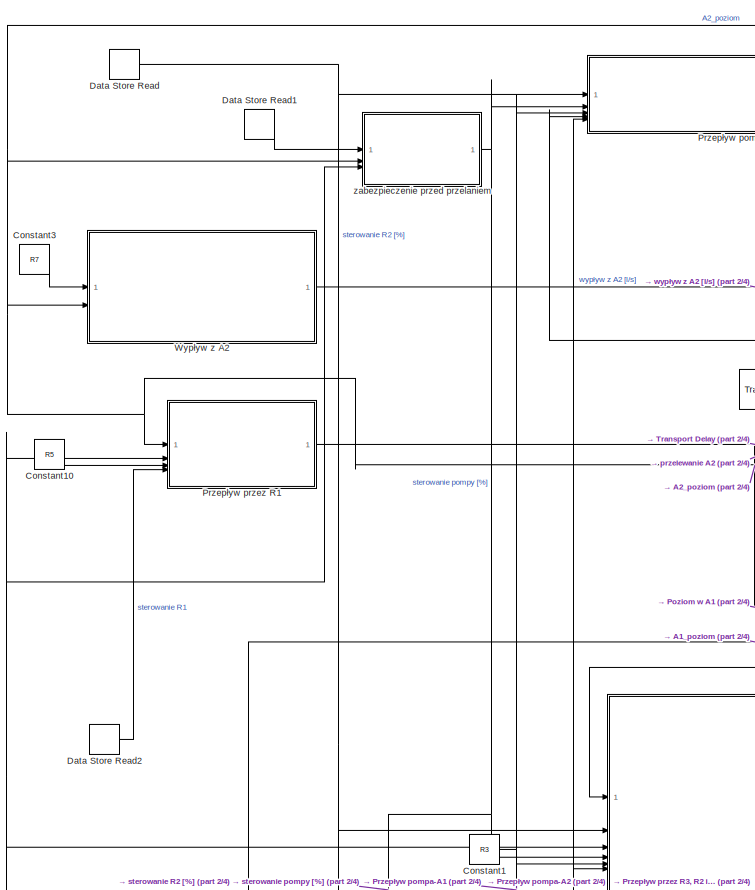
[diagram: root canvas - part 1/4, top left region]
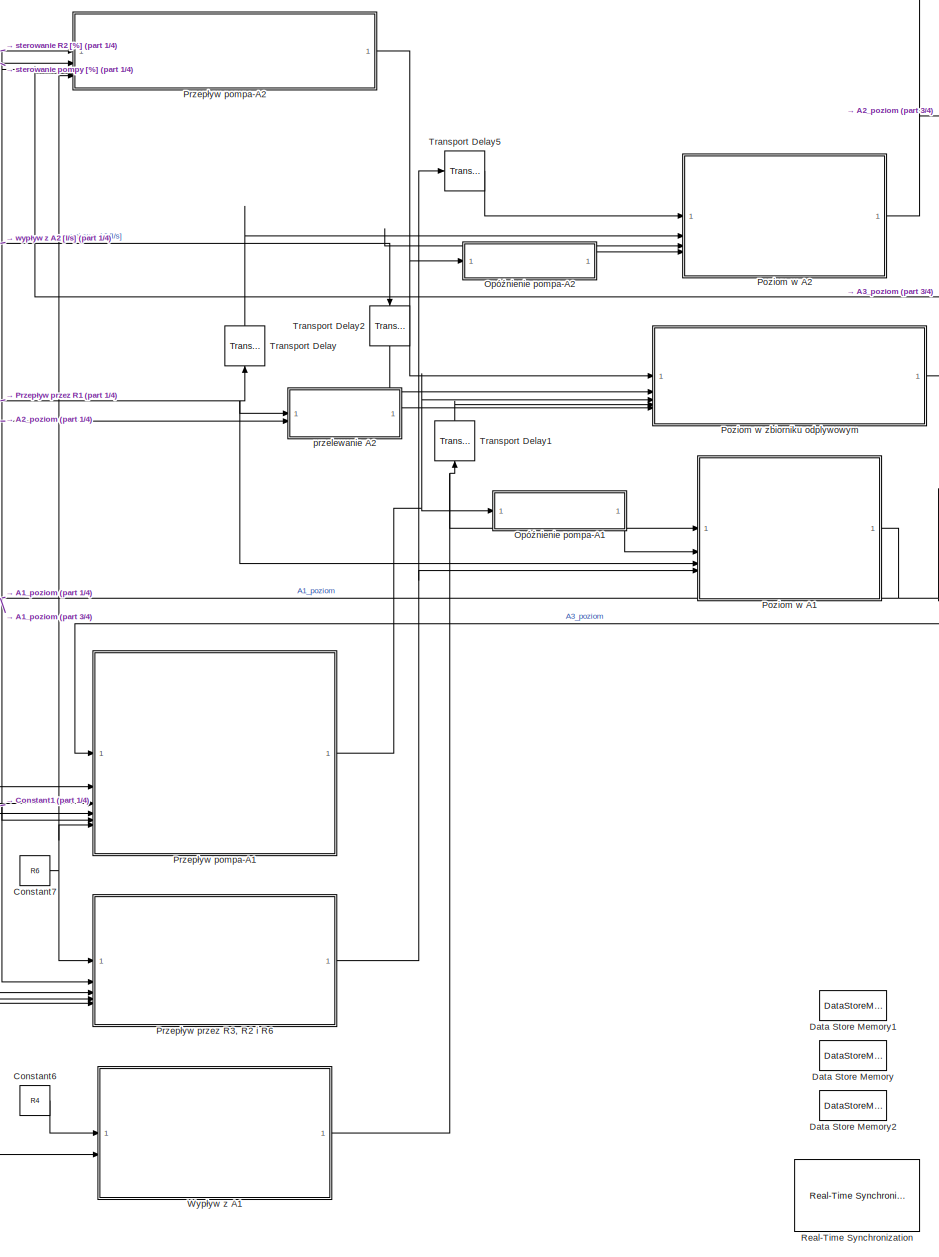
[diagram: root canvas - part 2/4, central region]
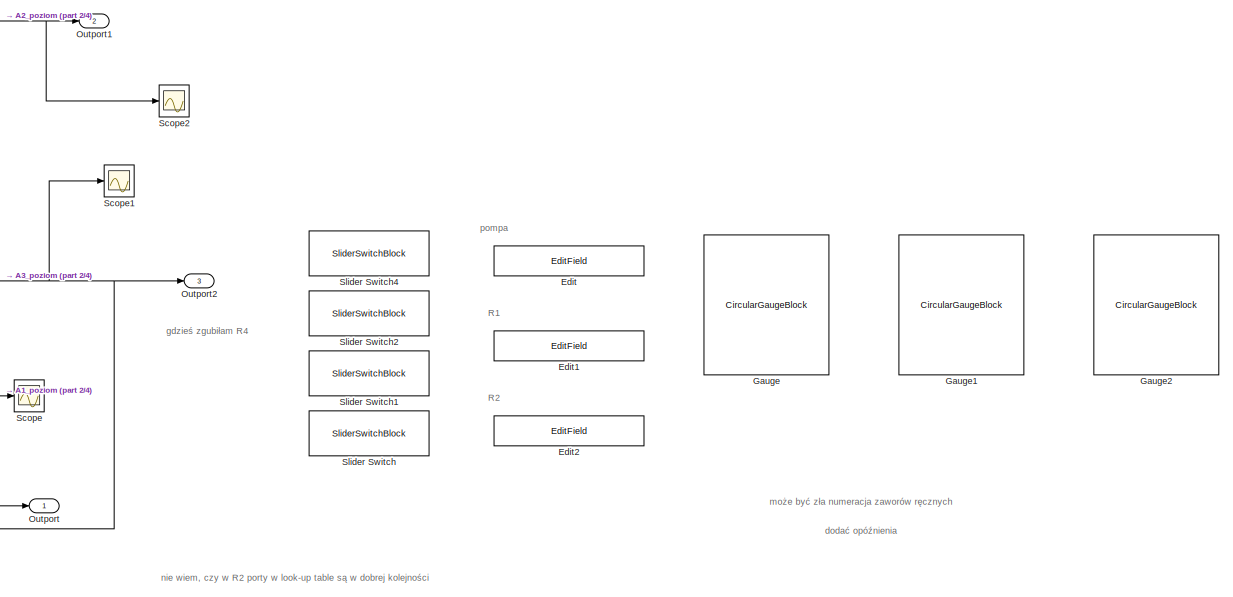
[diagram: root canvas - part 3/4, top right region]
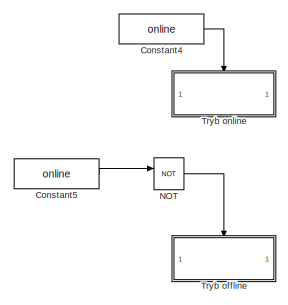
[diagram: root canvas - part 4/4, bottom left region]
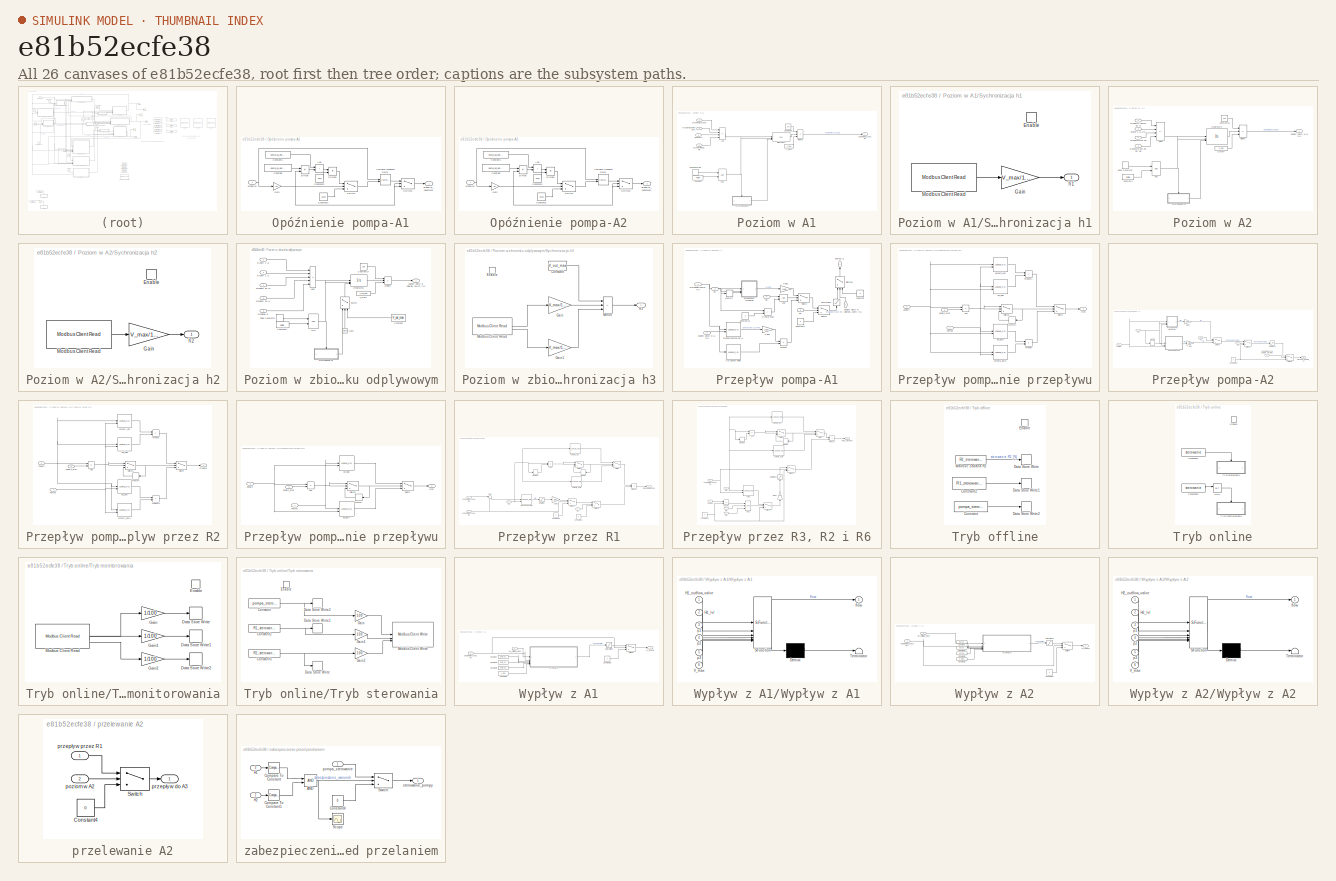
[diagram: thumbnail index - all 26 canvases of the model, root first then tree order]
MODEL slx_e81b52ecfe38
KIND model
CONFIG AbsTol = auto
CONFIG EnableMultiTasking = off
CONFIG FixedStep = auto
CONFIG InitFcn = PLC_IP = "10.10.6.1";\nport_num = 502;\n    \n    \nload("macierze_do_modelu.mat")
CONFIG MaxStep = auto
CONFIG MinStep = auto
CONFIG RelTol = 1e-3
CONFIG SampleTimeConstraint = Unconstrained
CONFIG SolverName = ode5
CONFIG StartTime = 0.0
CONFIG StopTime = inf
BLOCK [Constant] Constant1
  OutDataTypeStr = boolean
  Value = R3
BLOCK [Constant] Constant10
  OutDataTypeStr = boolean
  Value = R5
BLOCK [Constant] Constant3
  OutDataTypeStr = boolean
  Value = R7
BLOCK [Constant] Constant4
  OutDataTypeStr = boolean
  Value = online
BLOCK [Constant] Constant5
  OutDataTypeStr = boolean
  Value = online
BLOCK [Constant] Constant6
  OutDataTypeStr = boolean
  Value = R4
BLOCK [Constant] Constant7
  OutDataTypeStr = boolean
  Value = R6
BLOCK [DataStoreMemory] Data Store Memory
  DataStoreName = R2
  ShowAdditionalParam = off
  WriteAfterWriteMsg = warning
BLOCK [DataStoreMemory] Data Store Memory1
  DataStoreName = R1
  ShowAdditionalParam = off
  WriteAfterWriteMsg = warning
BLOCK [DataStoreMemory] Data Store Memory2
  DataStoreName = pompa
  ShowAdditionalParam = off
  WriteAfterWriteMsg = warning
BLOCK [DataStoreRead] Data Store Read
  DataStoreName = R2
  IndexOptions = Index vector (dialog)
  Indices = 1
  OutputSizes = 1
BLOCK [DataStoreRead] Data Store Read1
  DataStoreName = pompa
  IndexOptions = Index vector (dialog)
  Indices = 1
  OutputSizes = 1
BLOCK [DataStoreRead] Data Store Read2
  DataStoreName = R1
  IndexOptions = Index vector (dialog)
  Indices = 1
  OutputSizes = 1
BLOCK [EditField] Edit
  Alignment = Center
  Commented = on
  LabelPosition = Hide
  ShowInitialText = on
BLOCK [EditField] Edit1
  Alignment = Center
  Commented = on
  LabelPosition = Hide
  ShowInitialText = on
BLOCK [EditField] Edit2
  Alignment = Center
  Commented = on
  LabelPosition = Hide
  ShowInitialText = on
BLOCK [CircularGaugeBlock] Gauge
  Commented = on
BLOCK [CircularGaugeBlock] Gauge1
BLOCK [CircularGaugeBlock] Gauge2
BLOCK [Logic] NOT
  AllPortsSameDT = off
  IconShape = distinctive
  Operator = NOT
  OutDataTypeStr = boolean
BLOCK [SubSystem] Opóźnienie pompa-A1
BLOCK [Sum] Opóźnienie pompa-A1/Add
  IconShape = rectangular
BLOCK [Constant] Opóźnienie pompa-A1/Constant
  Value = pump_a1_delay_a
BLOCK [Constant] Opóźnienie pompa-A1/Constant1
  Value = pump_a1_delay_b
BLOCK [Constant] Opóźnienie pompa-A1/Constant2
  Value = 5000
BLOCK [Constant] Opóźnienie pompa-A1/Constant3
  Value = 1000
BLOCK [Product] Opóźnienie pompa-A1/Divide
  Inputs = */
BLOCK [Product] Opóźnienie pompa-A1/Divide1
  Inputs = */
BLOCK [Gain] Opóźnienie pompa-A1/Gain
  Gain = 60
BLOCK [Switch] Opóźnienie pompa-A1/Switch
  Criteria = u2 > Threshold
  InputSameDT = off
  SaturateOnIntegerOverflow = off
  Threshold = 0.1
BLOCK [Switch] Opóźnienie pompa-A1/Switch1
  Criteria = u2 > Threshold
  InputSameDT = off
  SaturateOnIntegerOverflow = off
  Threshold = 0.1
BLOCK [VariableTransportDelay] Opóźnienie pompa-A1/Variable Transport Delay
  MaximumDelay = 5000
  VariableDelayType = Variable transport delay
BLOCK [Inport] Opóźnienie pompa-A1/przeplyw
BLOCK [Outport] Opóźnienie pompa-A1/przeplyw_opozniony
BLOCK [SubSystem] Opóźnienie pompa-A2
BLOCK [Sum] Opóźnienie pompa-A2/Add
  IconShape = rectangular
BLOCK [Constant] Opóźnienie pompa-A2/Constant
  Value = pump_a2_delay_a
BLOCK [Constant] Opóźnienie pompa-A2/Constant1
  Value = pump_a2_delay_b
BLOCK [Constant] Opóźnienie pompa-A2/Constant2
  Value = 5000
BLOCK [Constant] Opóźnienie pompa-A2/Constant3
  Value = 1000
BLOCK [Product] Opóźnienie pompa-A2/Divide
  Inputs = */
BLOCK [Product] Opóźnienie pompa-A2/Divide1
  Inputs = */
BLOCK [Gain] Opóźnienie pompa-A2/Gain
  Gain = 60
BLOCK [Switch] Opóźnienie pompa-A2/Switch
  Criteria = u2 > Threshold
  InputSameDT = off
  SaturateOnIntegerOverflow = off
  Threshold = 0.1
BLOCK [Switch] Opóźnienie pompa-A2/Switch1
  Criteria = u2 > Threshold
  InputSameDT = off
  SaturateOnIntegerOverflow = off
  Threshold = 0.1
BLOCK [VariableTransportDelay] Opóźnienie pompa-A2/Variable Transport Delay
  MaximumDelay = 5000
  VariableDelayType = Variable transport delay
BLOCK [Inport] Opóźnienie pompa-A2/przeplyw
BLOCK [Outport] Opóźnienie pompa-A2/przeplyw_opozniony
BLOCK [Outport] Outport
  SignalName = A1_poziom
BLOCK [Outport] Outport1
  Port = 2
  SignalName = A2_poziom
BLOCK [Outport] Outport2
  Port = 3
  SignalName = A3_poziom
BLOCK [SubSystem] Poziom w A1
BLOCK [Logic] Poziom w A1/AND
  AllPortsSameDT = off
  IconShape = distinctive
  OutDataTypeStr = boolean
BLOCK [Sum] Poziom w A1/Add
  IconShape = rectangular
  Inputs = +++-
BLOCK [Constant] Poziom w A1/Constant1
  OutDataTypeStr = boolean
  Value = online
BLOCK [Constant] Poziom w A1/Constant15
  Value = 100
BLOCK [Product] Poziom w A1/Divide3
  Inputs = **/
BLOCK [Integrator] Poziom w A1/Integrator3
  ExternalReset = rising
  InitialConditionSource = external
  LimitOutput = on
  LowerSaturationLimit = 0
  UpperSaturationLimit = V_max
BLOCK [DiscretePulseGenerator] Poziom w A1/Pulse Generator
  Period = 60
  PulseType = Time based
  PulseWidth = 5
BLOCK [SubSystem] Poziom w A1/Sychronizacja h1
  TreatAsAtomicUnit = on
BLOCK [EnablePort] Poziom w A1/Sychronizacja h1/Enable
BLOCK [Gain] Poziom w A1/Sychronizacja h1/Gain
  Gain = V_max/100
BLOCK [Reference] Poziom w A1/Sychronizacja h1/Modbus Client Read  REF=modbuslib/Modbus Client Read
  SourceBlock = modbuslib/Modbus Client Read
  SourceType = modbusRead
BLOCK [Outport] Poziom w A1/Sychronizacja h1/h1
BLOCK [Constant] Poziom w A1/V_max3
  Value = V_max
BLOCK [Outport] Poziom w A1/poziom cieczy w A1 [%]
BLOCK [Inport] Poziom w A1/przepływ R3, R2, R6
  Port = 4
BLOCK [Inport] Poziom w A1/przepływ przez R1
  Port = 3
BLOCK [Inport] Poziom w A1/przepływ z pompy do A1
  Port = 2
BLOCK [Inport] Poziom w A1/wypływ z A1
BLOCK [SubSystem] Poziom w A2
BLOCK [Logic] Poziom w A2/AND
  AllPortsSameDT = off
  IconShape = distinctive
  OutDataTypeStr = boolean
BLOCK [Sum] Poziom w A2/Add1
  IconShape = rectangular
  Inputs = ++-+
BLOCK [Constant] Poziom w A2/Constant1
  OutDataTypeStr = boolean
  Value = online
BLOCK [Constant] Poziom w A2/Constant16
  Value = 100
BLOCK [Product] Poziom w A2/Divide4
  Inputs = **/
BLOCK [Integrator] Poziom w A2/Integrator4
  ExternalReset = rising
  InitialConditionSource = external
  LimitOutput = on
  LowerSaturationLimit = 0
  UpperSaturationLimit = V_max
BLOCK [DiscretePulseGenerator] Poziom w A2/Pulse Generator
  Period = 60
  PulseType = Time based
  PulseWidth = 5
BLOCK [SubSystem] Poziom w A2/Sychronizacja h2
  TreatAsAtomicUnit = on
BLOCK [EnablePort] Poziom w A2/Sychronizacja h2/Enable
BLOCK [Gain] Poziom w A2/Sychronizacja h2/Gain
  Gain = V_max/100
BLOCK [Reference] Poziom w A2/Sychronizacja h2/Modbus Client Read  REF=modbuslib/Modbus Client Read
  SourceBlock = modbuslib/Modbus Client Read
  SourceType = modbusRead
BLOCK [Outport] Poziom w A2/Sychronizacja h2/h2
BLOCK [Constant] Poziom w A2/V_max4
  Value = V_max
BLOCK [Outport] Poziom w A2/poziom cieczy w A2 [%]
BLOCK [Inport] Poziom w A2/przepływ przez R1
  Port = 2
BLOCK [Inport] Poziom w A2/przepływ przez R3, R2, R6
BLOCK [Inport] Poziom w A2/przepływ z pompy do A2
  Port = 4
BLOCK [Inport] Poziom w A2/wypływ z A2 [l//s]
  Port = 3
BLOCK [SubSystem] Poziom w zbiorniku odplywowym
BLOCK [Logic] Poziom w zbiorniku odplywowym/AND
  AllPortsSameDT = off
  IconShape = distinctive
  OutDataTypeStr = boolean
BLOCK [Sum] Poziom w zbiorniku odplywowym/Add2
  IconShape = rectangular
  Inputs = -----
BLOCK [Clock] Poziom w zbiorniku odplywowym/Clock
  NameLocation = right
BLOCK [Constant] Poziom w zbiorniku odplywowym/Constant
  NameLocation = top
  Value = V_out_max
BLOCK [Constant] Poziom w zbiorniku odplywowym/Constant1
  OutDataTypeStr = boolean
  Value = online
BLOCK [Constant] Poziom w zbiorniku odplywowym/Constant17
  Value = 100
BLOCK [Product] Poziom w zbiorniku odplywowym/Divide1
  Inputs = **/
BLOCK [Integrator] Poziom w zbiorniku odplywowym/Integrator1
  ExternalReset = rising
  InitialCondition = V_out_max
  InitialConditionSource = external
  LimitOutput = on
  LowerSaturationLimit = 0
  UpperSaturationLimit = V_out_max
BLOCK [DiscretePulseGenerator] Poziom w zbiorniku odplywowym/Pulse Generator
  Period = 60
  PulseType = Time based
  PulseWidth = 5
BLOCK [Switch] Poziom w zbiorniku odplywowym/Switch
  Criteria = u2 > Threshold
  InputSameDT = off
  NameLocation = right
  SaturateOnIntegerOverflow = off
  Threshold = 10
BLOCK [SubSystem] Poziom w zbiorniku odplywowym/Sychronizacja h3
  TreatAsAtomicUnit = on
BLOCK [Constant] Poziom w zbiorniku odplywowym/Sychronizacja h3/Constant
  Value = V_out_max
BLOCK [EnablePort] Poziom w zbiorniku odplywowym/Sychronizacja h3/Enable
BLOCK [Gain] Poziom w zbiorniku odplywowym/Sychronizacja h3/Gain
  Gain = V_max/100
BLOCK [Gain] Poziom w zbiorniku odplywowym/Sychronizacja h3/Gain1
  Gain = V_max/100
BLOCK [Sum] Poziom w zbiorniku odplywowym/Sychronizacja h3/Minus
  IconShape = rectangular
  Inputs = +--
BLOCK [Reference] Poziom w zbiorniku odplywowym/Sychronizacja h3/Modbus Client Read  REF=modbuslib/Modbus Client Read
  SourceBlock = modbuslib/Modbus Client Read
  SourceType = modbusRead
BLOCK [Outport] Poziom w zbiorniku odplywowym/Sychronizacja h3/h3
BLOCK [Constant] Poziom w zbiorniku odplywowym/V_max1
  OutDataTypeStr = double
  Value = V_out_max
BLOCK [Outport] Poziom w zbiorniku odplywowym/poziom cieczy w zbiorniku odpływowym [%]
BLOCK [Inport] Poziom w zbiorniku odplywowym/przelanie A2
  Port = 5
BLOCK [Inport] Poziom w zbiorniku odplywowym/przepływ do A1
  Port = 3
BLOCK [Inport] Poziom w zbiorniku odplywowym/przepływ do A2
BLOCK [Inport] Poziom w zbiorniku odplywowym/wypływ z A1
  Port = 4
BLOCK [Inport] Poziom w zbiorniku odplywowym/wypływ z A2
  Port = 2
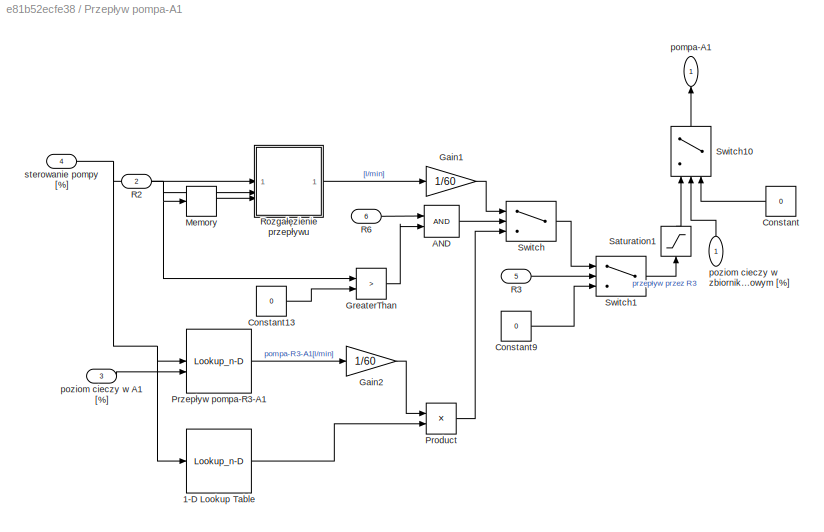
BLOCK [SubSystem] Przepływ pompa-A1
BLOCK [Lookup_n-D] Przepływ pompa-A1/1-D Lookup Table
  BreakpointsForDimension1 = [30, 40, 60, 80, 100]
  InputPortMap = u0
  InternalRulePriority = Speed
  NumberOfTableDimensions = 1
  RndMeth = Simplest
  Table = [1, 1.0243, 1.0582, 1.0915, 1.0664]
BLOCK [Logic] Przepływ pompa-A1/AND
  AllPortsSameDT = off
  IconShape = distinctive
  OutDataTypeStr = boolean
BLOCK [Constant] Przepływ pompa-A1/Constant
  NameLocation = top
  Value = 0
BLOCK [Constant] Przepływ pompa-A1/Constant13
  OutDataTypeStr = double
  Value = 0
BLOCK [Constant] Przepływ pompa-A1/Constant9
  OutDataTypeStr = double
  Value = 0
BLOCK [Gain] Przepływ pompa-A1/Gain1
  Gain = 1/60
BLOCK [Gain] Przepływ pompa-A1/Gain2
  Gain = 1/60
BLOCK [RelationalOperator] Przepływ pompa-A1/GreaterThan
  InputSameDT = off
  Operator = >
  OutDataTypeStr = boolean
  RndMeth = Simplest
BLOCK [Memory] Przepływ pompa-A1/Memory
BLOCK [Product] Przepływ pompa-A1/Product
BLOCK [Lookup_n-D] Przepływ pompa-A1/Przepływ pompa-R3-A1
  BreakpointsForDimension1 = 40:10:100
  BreakpointsForDimension2 = 0:10:100
  IndexSearchMethod = Linear search
  InputPortMap = u0,u1
  InternalRulePriority = Speed
  RndMeth = Simplest
  Table = M_pump_A1'
BLOCK [Inport] Przepływ pompa-A1/R2
  Port = 2
BLOCK [Inport] Przepływ pompa-A1/R3
  Port = 5
BLOCK [Inport] Przepływ pompa-A1/R6
  Port = 6
BLOCK [SubSystem] Przepływ pompa-A1/Rozgałęzienie przepływu
BLOCK [Sum] Przepływ pompa-A1/Rozgałęzienie przepływu/Add
  IconShape = rectangular
  Inputs = +-
BLOCK [Memory] Przepływ pompa-A1/Rozgałęzienie przepływu/Memory
  NameLocation = top
BLOCK [Inport] Przepływ pompa-A1/Rozgałęzienie przepływu/Pompa
BLOCK [Product] Przepływ pompa-A1/Rozgałęzienie przepływu/Product
BLOCK [Product] Przepływ pompa-A1/Rozgałęzienie przepływu/Product1
BLOCK [Switch] Przepływ pompa-A1/Rozgałęzienie przepływu/Switch
  Criteria = u2 > Threshold
  InputSameDT = off
  SaturateOnIntegerOverflow = off
BLOCK [Switch] Przepływ pompa-A1/Rozgałęzienie przepływu/Switch1
  Criteria = u2 ~= 0
  InputSameDT = off
  SaturateOnIntegerOverflow = off
BLOCK [Inport] Przepływ pompa-A1/Rozgałęzienie przepływu/Zawor2
  Port = 2
BLOCK [Inport] Przepływ pompa-A1/Rozgałęzienie przepływu/Zawor2_prev
  Port = 3
BLOCK [Lookup_n-D] Przepływ pompa-A1/Rozgałęzienie przepływu/korekta_dol
  BreakpointsForDimension1 = 30:10:100
  BreakpointsForDimension2 = 40:10:100
  InputPortMap = u0,u1
  InternalRulePriority = Speed
  RndMeth = Simplest
  Table = rozgalezienie_korekta_A1_dol
BLOCK [Lookup_n-D] Przepływ pompa-A1/Rozgałęzienie przepływu/korekta_gora
  BreakpointsForDimension1 = 30:10:100
  BreakpointsForDimension2 = 40:10:100
  InputPortMap = u0,u1
  InternalRulePriority = Speed
  RndMeth = Simplest
  Table = rozgalezienie_korekta_A2_dol
BLOCK [Outport] Przepływ pompa-A1/Rozgałęzienie przepływu/l//min
BLOCK [Lookup_n-D] Przepływ pompa-A1/Rozgałęzienie przepływu/od_dolu
  BreakpointsForDimension1 = 40:10:100
  BreakpointsForDimension2 = 30:10:100
  InputPortMap = u0,u1
  InternalRulePriority = Speed
  RndMeth = Simplest
  Table = rozgalezienie_h1_dol
BLOCK [Lookup_n-D] Przepływ pompa-A1/Rozgałęzienie przepływu/od_gory
  BreakpointsForDimension1 = 40:10:100
  BreakpointsForDimension2 = 30:10:100
  InputPortMap = u0,u1
  InternalRulePriority = Speed
  RndMeth = Simplest
  Table = rozgalezienie_h1_gora
BLOCK [Saturate] Przepływ pompa-A1/Saturation1
  LowerLimit = 0
  NameLocation = right
  UpperLimit = 35
BLOCK [Switch] Przepływ pompa-A1/Switch
  Criteria = u2 ~= 0
  InputSameDT = off
  SaturateOnIntegerOverflow = off
BLOCK [Switch] Przepływ pompa-A1/Switch1
  Criteria = u2 ~= 0
  InputSameDT = off
  SaturateOnIntegerOverflow = off
BLOCK [Switch] Przepływ pompa-A1/Switch10
  Criteria = u2 > Threshold
  InputSameDT = off
  NameLocation = right
  SaturateOnIntegerOverflow = off
BLOCK [Outport] Przepływ pompa-A1/pompa-A1
  NameLocation = right
BLOCK [Inport] Przepływ pompa-A1/poziom cieczy w A1 [%]
  Port = 3
BLOCK [Inport] Przepływ pompa-A1/poziom cieczy w zbiorniku odpływowym [%]
  NameLocation = right
BLOCK [Inport] Przepływ pompa-A1/sterowanie pompy [%]
  Port = 4
BLOCK [SubSystem] Przepływ pompa-A2
BLOCK [Constant] Przepływ pompa-A2/Constant23
  Value = 0
BLOCK [Gain] Przepływ pompa-A2/Gain
  Gain = 1/60
BLOCK [Gain] Przepływ pompa-A2/Gain1
  Gain = 1/60
BLOCK [Memory] Przepływ pompa-A2/Memory
BLOCK [Inport] Przepływ pompa-A2/Pompa
  Port = 2
BLOCK [SubSystem] Przepływ pompa-A2/Przeplyw przez R2
BLOCK [Sum] Przepływ pompa-A2/Przeplyw przez R2/Add
  IconShape = rectangular
  Inputs = +-
BLOCK [Memory] Przepływ pompa-A2/Przeplyw przez R2/Memory
  NameLocation = top
BLOCK [Inport] Przepływ pompa-A2/Przeplyw przez R2/Pompa
  Port = 3
BLOCK [Product] Przepływ pompa-A2/Przeplyw przez R2/Product
BLOCK [Product] Przepływ pompa-A2/Przeplyw przez R2/Product1
BLOCK [Outport] Przepływ pompa-A2/Przeplyw przez R2/Przeplyw
BLOCK [Switch] Przepływ pompa-A2/Przeplyw przez R2/Switch
  Criteria = u2 > Threshold
  InputSameDT = off
  SaturateOnIntegerOverflow = off
BLOCK [Switch] Przepływ pompa-A2/Przeplyw przez R2/Switch1
  Criteria = u2 ~= 0
  InputSameDT = off
  SaturateOnIntegerOverflow = off
BLOCK [Inport] Przepływ pompa-A2/Przeplyw przez R2/Zawor2
BLOCK [Inport] Przepływ pompa-A2/Przeplyw przez R2/Zawor2_prev
  Port = 2
BLOCK [Lookup_n-D] Przepływ pompa-A2/Przeplyw przez R2/korekty_dol
  BreakpointsForDimension1 = 0:10:100
  BreakpointsForDimension2 = 0:10:100
  InputPortMap = u0,u1
  InternalRulePriority = Speed
  RndMeth = Simplest
  Table = R2_K_dol
BLOCK [Lookup_n-D] Przepływ pompa-A2/Przeplyw przez R2/korekty_gora
  BreakpointsForDimension1 = 0:10:100
  BreakpointsForDimension2 = 0:10:100
  InputPortMap = u0,u1
  InternalRulePriority = Speed
  RndMeth = Simplest
  Table = R2_K_gora
BLOCK [Lookup_n-D] Przepływ pompa-A2/Przeplyw przez R2/od_dolu
  BreakpointsForDimension1 = 0:10:100
  BreakpointsForDimension2 = 0:10:100
  InputPortMap = u0,u1
  InternalRulePriority = Speed
  RndMeth = Simplest
  Table = R2_od_dolu
BLOCK [Lookup_n-D] Przepływ pompa-A2/Przeplyw przez R2/od_gory
  BreakpointsForDimension1 = 0:10:100
  BreakpointsForDimension2 = 0:10:100
  InputPortMap = u0,u1
  InternalRulePriority = Speed
  RndMeth = Simplest
  Table = R2_od_gory
BLOCK [Outport] Przepływ pompa-A2/Przeplyw_pompa_A2
  NameLocation = top
BLOCK [Inport] Przepływ pompa-A2/R2
BLOCK [Inport] Przepływ pompa-A2/R3
  Port = 3
BLOCK [Inport] Przepływ pompa-A2/R6
  Port = 5
BLOCK [SubSystem] Przepływ pompa-A2/Rozgałęzienie przepływu
BLOCK [Sum] Przepływ pompa-A2/Rozgałęzienie przepływu/Add
  IconShape = rectangular
  Inputs = +-
BLOCK [Memory] Przepływ pompa-A2/Rozgałęzienie przepływu/Memory
  NameLocation = top
BLOCK [Inport] Przepływ pompa-A2/Rozgałęzienie przepływu/Pompa
BLOCK [Switch] Przepływ pompa-A2/Rozgałęzienie przepływu/Switch
  Criteria = u2 > Threshold
  InputSameDT = off
  SaturateOnIntegerOverflow = off
BLOCK [Switch] Przepływ pompa-A2/Rozgałęzienie przepływu/Switch1
  Criteria = u2 ~= 0
  InputSameDT = off
  SaturateOnIntegerOverflow = off
BLOCK [Inport] Przepływ pompa-A2/Rozgałęzienie przepływu/Zawor2
  Port = 2
BLOCK [Inport] Przepływ pompa-A2/Rozgałęzienie przepływu/Zawor2_prev
  Port = 3
BLOCK [Outport] Przepływ pompa-A2/Rozgałęzienie przepływu/l//min
BLOCK [Lookup_n-D] Przepływ pompa-A2/Rozgałęzienie przepływu/od_dolu
  BreakpointsForDimension1 = 40:10:100
  BreakpointsForDimension2 = 30:10:100
  InputPortMap = u0,u1
  InternalRulePriority = Speed
  RndMeth = Simplest
  Table = rozgalezienie_h2_dol
BLOCK [Lookup_n-D] Przepływ pompa-A2/Rozgałęzienie przepływu/od_gory
  BreakpointsForDimension1 = 40:10:100
  BreakpointsForDimension2 = 30:10:100
  InputPortMap = u0,u1
  InternalRulePriority = Speed
  RndMeth = Simplest
  Table = rozgalezienie_h2_gora
BLOCK [Saturate] Przepływ pompa-A2/Saturation4
  LowerLimit = 0
  UpperLimit = 35
BLOCK [Switch] Przepływ pompa-A2/Switch1
  Criteria = u2 ~= 0
  InputSameDT = off
  SaturateOnIntegerOverflow = off
BLOCK [Switch] Przepływ pompa-A2/Switch3
  Criteria = u2 ~= 0
  InputSameDT = off
  SaturateOnIntegerOverflow = off
BLOCK [Switch] Przepływ pompa-A2/Switch9
  Criteria = u2 > Threshold
  InputSameDT = off
  SaturateOnIntegerOverflow = off
BLOCK [Inport] Przepływ pompa-A2/poziom cieczy w zbiorniku odpływowym [%]
  Port = 4
BLOCK [SubSystem] Przepływ przez R1
BLOCK [Lookup_n-D] Przepływ przez R1/2-D Lookup Table
  BreakpointsForDimension1 = lvls
  BreakpointsForDimension2 = 40:10:100
  ExtrapMethod = Cubic spline
  InputPortMap = u0,u1
  InternalRulePriority = Speed
  InterpMethod = Cubic spline
  RndMeth = Simplest
  Table = flows_diff
BLOCK [Sum] Przepływ przez R1/Add
  IconShape = rectangular
  Inputs = +-
BLOCK [Constant] Przepływ przez R1/Constant11
  OutDataTypeStr = double
  Value = 0
BLOCK [Constant] Przepływ przez R1/Constant22
  Value = 0
BLOCK [Gain] Przepływ przez R1/Gain2
  Gain = 1/60
BLOCK [Memory] Przepływ przez R1/Memory
  NameLocation = top
BLOCK [Memory] Przepływ przez R1/Memory1
BLOCK [Product] Przepływ przez R1/Product
BLOCK [Inport] Przepływ przez R1/R1
  Port = 4
BLOCK [Inport] Przepływ przez R1/R5
  Port = 3
BLOCK [Saturate] Przepływ przez R1/Saturation
  LowerLimit = -35
  UpperLimit = 0
BLOCK [Sum] Przepływ przez R1/Sum
  Inputs = |-+
BLOCK [Switch] Przepływ przez R1/Switch
  Criteria = u2 > Threshold
  InputSameDT = off
  SaturateOnIntegerOverflow = off
BLOCK [Switch] Przepływ przez R1/Switch1
  Criteria = u2 ~= 0
  InputSameDT = off
  SaturateOnIntegerOverflow = off
BLOCK [Switch] Przepływ przez R1/Switch2
  Criteria = u2 ~= 0
  InputSameDT = off
  SaturateOnIntegerOverflow = off
BLOCK [Switch] Przepływ przez R1/Switch8
  Criteria = u2 > Threshold
  InputSameDT = off
  SaturateOnIntegerOverflow = off
BLOCK [Lookup_n-D] Przepływ przez R1/korekta_dol
  BreakpointsForDimension1 = 40:10:100
  InputPortMap = u0
  InternalRulePriority = Speed
  NumberOfTableDimensions = 1
  RndMeth = Simplest
  Table = R1_K_dol
BLOCK [Lookup_n-D] Przepływ przez R1/korekta_gora
  BreakpointsForDimension1 = 40:10:100
  InputPortMap = u0
  InternalRulePriority = Speed
  NumberOfTableDimensions = 1
  RndMeth = Simplest
  Table = R1_K_gora
BLOCK [Inport] Przepływ przez R1/poziom cieczy w A1 [%]
  Port = 2
BLOCK [Inport] Przepływ przez R1/poziom cieczy w A2 [%]
  NameLocation = top
BLOCK [Outport] Przepływ przez R1/przepływ przez R1
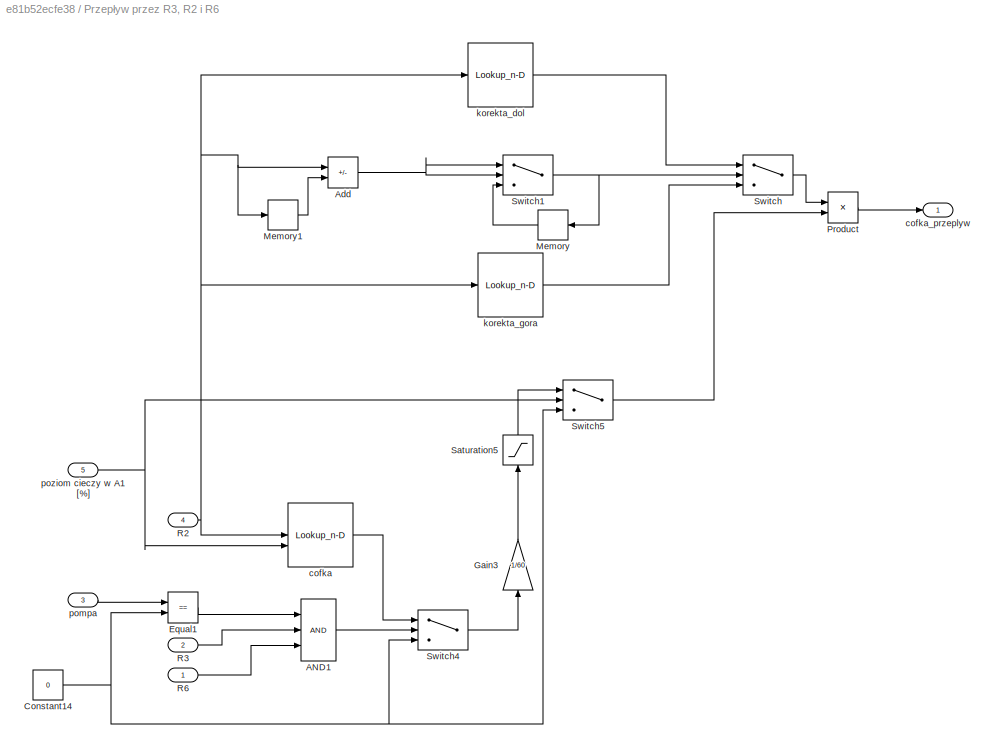
BLOCK [SubSystem] Przepływ przez R3, R2 i R6
BLOCK [Logic] Przepływ przez R3, R2 i R6/AND1
  AllPortsSameDT = off
  IconShape = distinctive
  Inputs = 3
  OutDataTypeStr = boolean
BLOCK [Sum] Przepływ przez R3, R2 i R6/Add
  IconShape = rectangular
  Inputs = +-
BLOCK [Constant] Przepływ przez R3, R2 i R6/Constant14
  Value = 0
BLOCK [RelationalOperator] Przepływ przez R3, R2 i R6/Equal1
  InputSameDT = off
  Operator = ==
  OutDataTypeStr = boolean
  RndMeth = Simplest
BLOCK [Gain] Przepływ przez R3, R2 i R6/Gain3
  Gain = 1/60
  NameLocation = right
BLOCK [Memory] Przepływ przez R3, R2 i R6/Memory
  NameLocation = top
BLOCK [Memory] Przepływ przez R3, R2 i R6/Memory1
BLOCK [Product] Przepływ przez R3, R2 i R6/Product
BLOCK [Inport] Przepływ przez R3, R2 i R6/R2
  Port = 4
BLOCK [Inport] Przepływ przez R3, R2 i R6/R3
  Port = 2
BLOCK [Inport] Przepływ przez R3, R2 i R6/R6
BLOCK [Saturate] Przepływ przez R3, R2 i R6/Saturation5
  LowerLimit = 0
  NameLocation = right
  UpperLimit = 35
BLOCK [Switch] Przepływ przez R3, R2 i R6/Switch
  Criteria = u2 > Threshold
  InputSameDT = off
  SaturateOnIntegerOverflow = off
BLOCK [Switch] Przepływ przez R3, R2 i R6/Switch1
  Criteria = u2 ~= 0
  InputSameDT = off
  SaturateOnIntegerOverflow = off
BLOCK [Switch] Przepływ przez R3, R2 i R6/Switch4
  Criteria = u2 ~= 0
  InputSameDT = off
  SaturateOnIntegerOverflow = off
BLOCK [Switch] Przepływ przez R3, R2 i R6/Switch5
  Criteria = u2 > Threshold
  InputSameDT = off
  SaturateOnIntegerOverflow = off
  Threshold = 5
BLOCK [Lookup_n-D] Przepływ przez R3, R2 i R6/cofka
  BreakpointsForDimension1 = 30:10:100
  BreakpointsForDimension2 = 10:10:100
  InputPortMap = u0,u1
  InternalRulePriority = Speed
  RndMeth = Simplest
  Table = M_cofka
BLOCK [Outport] Przepływ przez R3, R2 i R6/cofka_przeplyw
  NameLocation = top
BLOCK [Lookup_n-D] Przepływ przez R3, R2 i R6/korekta_dol
  BreakpointsForDimension1 = 40:10:100
  InputPortMap = u0
  InternalRulePriority = Speed
  NumberOfTableDimensions = 1
  RndMeth = Simplest
  Table = [0.56, 1, 1, 1, 1, 1, 1]
BLOCK [Lookup_n-D] Przepływ przez R3, R2 i R6/korekta_gora
  BreakpointsForDimension1 = 40:10:100
  InputPortMap = u0
  InternalRulePriority = Speed
  NumberOfTableDimensions = 1
  RndMeth = Simplest
  Table = [1, 1.18, 1, 1, 1, 1, 1]
BLOCK [Inport] Przepływ przez R3, R2 i R6/pompa
  Port = 3
BLOCK [Inport] Przepływ przez R3, R2 i R6/poziom cieczy w A1 [%]
  Port = 5
BLOCK [Reference] Real-Time Synchronization  REF=sldrtlib/Real-Time
Synchronization
  SourceBlock = sldrtlib/Real-Time\nSynchronization
  SourceType = Simulink Desktop Real-Time Synchronization
BLOCK [Scope] Scope
  DataLoggingDecimateData = on
  DataLoggingDecimation = 1
  DataLoggingLimitDataPoints = on
  DataLoggingSaveFormat = Array
  Floating = off
  GraphicalSettings = {"GraphicalSettings":{"LegacySettings":true,"Style":{"Style":{"ActiveDisplayYMaximum":"17.94703","ActiveDisplayYMinimum":"-1.99411","MinimizeControls":"false","PlotType":"Auto"}}}}
  NumInputPorts = 1
  WasSavedAsWebScope = on
BLOCK [Scope] Scope1
  DataLoggingDecimateData = on
  DataLoggingDecimation = 1
  DataLoggingLimitDataPoints = on
  DataLoggingSaveFormat = Array
  DataLoggingVariableName = ScopeData1
  Floating = off
  GraphicalSettings = {"GraphicalSettings":{"LegacySettings":true,"Style":{"Style":{"ActiveDisplayYMaximum":"101.19647","ActiveDisplayYMinimum":"89.23178","MinimizeControls":"false","PlotType":"Auto"}}}}
  NumInputPorts = 1
  WasSavedAsWebScope = on
BLOCK [Scope] Scope2
  DataLoggingDecimateData = on
  DataLoggingDecimation = 1
  DataLoggingLimitDataPoints = on
  DataLoggingSaveFormat = Array
  DataLoggingVariableName = ScopeData2
  Floating = off
  GraphicalSettings = {"GraphicalSettings":{"LegacySettings":true,"Style":{"Style":{"ActiveDisplayYMaximum":"1","ActiveDisplayYMinimum":"-1","MinimizeControls":"false","PlotType":"Auto"}}}}
  NumInputPorts = 1
  WasSavedAsWebScope = on
BLOCK [SliderSwitchBlock] Slider Switch
  Commented = on
BLOCK [SliderSwitchBlock] Slider Switch1
  Commented = on
BLOCK [SliderSwitchBlock] Slider Switch2
  Commented = on
BLOCK [SliderSwitchBlock] Slider Switch4
  Commented = on
BLOCK [TransportDelay] Transport Delay
  DelayTime = 1.65
  NameLocation = right
BLOCK [TransportDelay] Transport Delay1
  DelayTime = 1.15
  NameLocation = right
BLOCK [TransportDelay] Transport Delay2
  DelayTime = 0.9
  NameLocation = left
BLOCK [TransportDelay] Transport Delay5
  DelayTime = 2
BLOCK [SubSystem] Tryb offline
  TreatAsAtomicUnit = on
BLOCK [Constant] Tryb offline/Constant
  OutDataTypeStr = double
  Value = pompa_sterowanie
BLOCK [Constant] Tryb offline/Constant2
  Value = R1_sterowanie
BLOCK [DataStoreWrite] Tryb offline/Data Store Write
  DataStoreName = R2
  IndexOptions = Index vector (dialog)
  Indices = 1
  OutputSizes = 1
BLOCK [DataStoreWrite] Tryb offline/Data Store Write1
  DataStoreName = R1
  IndexOptions = Index vector (dialog)
  Indices = 1
  OutputSizes = 1
BLOCK [DataStoreWrite] Tryb offline/Data Store Write2
  DataStoreName = pompa
  IndexOptions = Index vector (dialog)
  Indices = 1
  OutputSizes = 1
BLOCK [EnablePort] Tryb offline/Enable
BLOCK [Constant] Tryb offline/Wartosc zadana R2
  OutMax = 100
  OutMin = 0
  Value = R2_sterowanie
BLOCK [SubSystem] Tryb online
  TreatAsAtomicUnit = on
BLOCK [Constant] Tryb online/Constant4
  OutDataTypeStr = boolean
  Value = sterowanie
BLOCK [Constant] Tryb online/Constant5
  OutDataTypeStr = boolean
  Value = sterowanie
BLOCK [EnablePort] Tryb online/Enable
BLOCK [Logic] Tryb online/NOT
  AllPortsSameDT = off
  IconShape = distinctive
  Operator = NOT
  OutDataTypeStr = boolean
BLOCK [SubSystem] Tryb online/Tryb monitorowania
  TreatAsAtomicUnit = on
BLOCK [DataStoreWrite] Tryb online/Tryb monitorowania/Data Store Write
  DataStoreName = pompa
  IndexOptions = Index vector (dialog)
  Indices = 1
  OutputSizes = 1
BLOCK [DataStoreWrite] Tryb online/Tryb monitorowania/Data Store Write1
  DataStoreName = R1
  IndexOptions = Index vector (dialog)
  Indices = 1
  OutputSizes = 1
BLOCK [DataStoreWrite] Tryb online/Tryb monitorowania/Data Store Write2
  DataStoreName = R2
  IndexOptions = Index vector (dialog)
  Indices = 1
  OutputSizes = 1
BLOCK [EnablePort] Tryb online/Tryb monitorowania/Enable
BLOCK [Gain] Tryb online/Tryb monitorowania/Gain
  Gain = 1/100
BLOCK [Gain] Tryb online/Tryb monitorowania/Gain1
  Gain = 1/100
BLOCK [Gain] Tryb online/Tryb monitorowania/Gain2
  Gain = 1/100
BLOCK [Reference] Tryb online/Tryb monitorowania/Modbus Client Read  REF=modbuslib/Modbus Client Read
  SourceBlock = modbuslib/Modbus Client Read
  SourceType = modbusRead
BLOCK [SubSystem] Tryb online/Tryb sterowania
  TreatAsAtomicUnit = on
BLOCK [Constant] Tryb online/Tryb sterowania/Constant
  OutDataTypeStr = double
  Value = pompa_sterowanie
BLOCK [Constant] Tryb online/Tryb sterowania/Constant2
  Value = R1_sterowanie
BLOCK [Constant] Tryb online/Tryb sterowania/Constant3
  OutMax = 100
  OutMin = 0
  Value = R2_sterowanie
BLOCK [DataStoreWrite] Tryb online/Tryb sterowania/Data Store Write
  DataStoreName = R2
  IndexOptions = Index vector (dialog)
  Indices = 1
  OutputSizes = 1
BLOCK [DataStoreWrite] Tryb online/Tryb sterowania/Data Store Write1
  DataStoreName = R1
  IndexOptions = Index vector (dialog)
  Indices = 1
  OutputSizes = 1
BLOCK [DataStoreWrite] Tryb online/Tryb sterowania/Data Store Write2
  DataStoreName = pompa
  IndexOptions = Index vector (dialog)
  Indices = 1
  OutputSizes = 1
BLOCK [EnablePort] Tryb online/Tryb sterowania/Enable
BLOCK [Gain] Tryb online/Tryb sterowania/Gain
  Gain = 100
BLOCK [Gain] Tryb online/Tryb sterowania/Gain1
  Gain = 100
BLOCK [Gain] Tryb online/Tryb sterowania/Gain2
  Gain = 100
BLOCK [Reference] Tryb online/Tryb sterowania/Modbus Client Write  REF=modbuslib/Modbus Client Write
  SourceBlock = modbuslib/Modbus Client Write
  SourceType = modbusWrite
BLOCK [SubSystem] Wypływ z A1
BLOCK [Outport] Wypływ z A1/A1_wyplyw
BLOCK [Constant] Wypływ z A1/Constant
  Value = gora_p1
BLOCK [Constant] Wypływ z A1/Constant1
  Value = gora_p2
BLOCK [Constant] Wypływ z A1/Constant2
  Value = gora_p3
BLOCK [Constant] Wypływ z A1/Constant20
  OutDataTypeStr = double
  Value = 0
BLOCK [Constant] Wypływ z A1/Constant3
  Value = V_max
BLOCK [Inport] Wypływ z A1/H1_outflow_valve
BLOCK [Saturate] Wypływ z A1/Saturation2
  LowerLimit = -35
  UpperLimit = 0
BLOCK [Switch] Wypływ z A1/Switch6
  Criteria = u2 > Threshold
  InputSameDT = off
  SaturateOnIntegerOverflow = off
BLOCK [SubSystem] Wypływ z A1/Wypływ z A1
  ErrorFcn = Stateflow.Translate.translate
  PermitHierarchicalResolution = ExplicitOnly
  SFBlockType = MATLAB Function
  TreatAsAtomicUnit = on
BLOCK [Demux] Wypływ z A1/Wypływ z A1/ Demux 
  Outputs = 1
BLOCK [S-Function] Wypływ z A1/Wypływ z A1/ SFunction 
  EnableBusSupport = off
  FunctionName = sf_sfun
  PortCounts = [6 2]
  SFcnIsStateOwnerBlock = off
  SFunctionDeploymentMode = off
  Tag = Stateflow S-Function 3
BLOCK [Terminator] Wypływ z A1/Wypływ z A1/ Terminator 
BLOCK [Inport] Wypływ z A1/Wypływ z A1/H1_lvl
  Port = 2
BLOCK [Inport] Wypływ z A1/Wypływ z A1/H1_outflow_valve
BLOCK [Inport] Wypływ z A1/Wypływ z A1/V_max
  Port = 6
BLOCK [Outport] Wypływ z A1/Wypływ z A1/flow
BLOCK [Inport] Wypływ z A1/Wypływ z A1/p1
  Port = 3
BLOCK [Inport] Wypływ z A1/Wypływ z A1/p2
  Port = 4
BLOCK [Inport] Wypływ z A1/Wypływ z A1/p3
  Port = 5
BLOCK [Inport] Wypływ z A1/poziom cieczy w A1 [%]
  Port = 2
BLOCK [SubSystem] Wypływ z A2
BLOCK [Outport] Wypływ z A2/A2_wypływ
BLOCK [Constant] Wypływ z A2/Constant
  Value = dol_p1
BLOCK [Constant] Wypływ z A2/Constant1
  Value = dol_p2
BLOCK [Constant] Wypływ z A2/Constant2
  Value = dol_p3
BLOCK [Constant] Wypływ z A2/Constant21
  Value = 0
BLOCK [Constant] Wypływ z A2/Constant3
  Value = V_max
BLOCK [Inport] Wypływ z A2/H2_outflow_valve
BLOCK [Saturate] Wypływ z A2/Saturation3
  LowerLimit = -35
  UpperLimit = 0
BLOCK [Switch] Wypływ z A2/Switch7
  Criteria = u2 > Threshold
  InputSameDT = off
  SaturateOnIntegerOverflow = off
BLOCK [SubSystem] Wypływ z A2/Wypływ z A2
  ErrorFcn = Stateflow.Translate.translate
  PermitHierarchicalResolution = ExplicitOnly
  SFBlockType = MATLAB Function
  TreatAsAtomicUnit = on
BLOCK [Demux] Wypływ z A2/Wypływ z A2/ Demux 
  Outputs = 1
BLOCK [S-Function] Wypływ z A2/Wypływ z A2/ SFunction 
  EnableBusSupport = off
  FunctionName = sf_sfun
  PortCounts = [6 2]
  SFcnIsStateOwnerBlock = off
  SFunctionDeploymentMode = off
  Tag = Stateflow S-Function 1
BLOCK [Terminator] Wypływ z A2/Wypływ z A2/ Terminator 
BLOCK [Inport] Wypływ z A2/Wypływ z A2/H2_lvl
  Port = 2
BLOCK [Inport] Wypływ z A2/Wypływ z A2/H2_outflow_valve
BLOCK [Inport] Wypływ z A2/Wypływ z A2/V_max
  Port = 6
BLOCK [Outport] Wypływ z A2/Wypływ z A2/flow
BLOCK [Inport] Wypływ z A2/Wypływ z A2/p1
  Port = 3
BLOCK [Inport] Wypływ z A2/Wypływ z A2/p2
  Port = 4
BLOCK [Inport] Wypływ z A2/Wypływ z A2/p3
  Port = 5
BLOCK [Inport] Wypływ z A2/poziom cieczy w A2 [%]
  Port = 2
BLOCK [SubSystem] przelewanie A2
BLOCK [Constant] przelewanie A2/Constant4
  Value = 0
BLOCK [Switch] przelewanie A2/Switch
  InputSameDT = off
  SaturateOnIntegerOverflow = off
  Threshold = 100
BLOCK [Inport] przelewanie A2/poziom w A2
  Port = 2
BLOCK [Outport] przelewanie A2/przepływ do A3
BLOCK [Inport] przelewanie A2/przepływ przez R1
BLOCK [SubSystem] zabezpieczenie przed przelaniem
BLOCK [Logic] zabezpieczenie przed przelaniem/AND
  AllPortsSameDT = off
  IconShape = distinctive
  OutDataTypeStr = boolean
BLOCK [Reference] zabezpieczenie przed przelaniem/Compare To Constant  REF=simulink/Logic and Bit
Operations/Compare
To Constant
  SourceBlock = simulink/Logic and Bit\nOperations/Compare\nTo Constant
  SourceType = Compare To Constant
BLOCK [Reference] zabezpieczenie przed przelaniem/Compare To Constant1  REF=simulink/Logic and Bit
Operations/Compare
To Constant
  SourceBlock = simulink/Logic and Bit\nOperations/Compare\nTo Constant
  SourceType = Compare To Constant
BLOCK [Constant] zabezpieczenie przed przelaniem/Constant4
  Value = 0
BLOCK [Inport] zabezpieczenie przed przelaniem/H1
  Port = 3
BLOCK [Inport] zabezpieczenie przed przelaniem/H2
  Port = 2
BLOCK [Scope] zabezpieczenie przed przelaniem/Scope
  DataLoggingDecimateData = on
  DataLoggingDecimation = 1
  DataLoggingLimitDataPoints = on
  DataLoggingSaveFormat = Array
  DataLoggingVariableName = ScopeData1
  Floating = off
  GraphicalSettings = {"GraphicalSettings":{"LegacySettings":true,"Style":{"Style":{"MinimizeControls":"false","PlotType":"Auto"}}}}
  NumInputPorts = 1
  WasSavedAsWebScope = on
BLOCK [Switch] zabezpieczenie przed przelaniem/Switch
  Criteria = u2 ~= 0
  InputSameDT = off
  SaturateOnIntegerOverflow = off
  Threshold = 100
BLOCK [Inport] zabezpieczenie przed przelaniem/pompa_sterowanie
BLOCK [Outport] zabezpieczenie przed przelaniem/sterowanie_pompy
ANNOTATION (root): może być zła numeracja zaworów ręcznych
ANNOTATION (root): R1
ANNOTATION (root): R2
ANNOTATION (root): dodać opóźnienia
ANNOTATION (root): gdzieś zgubiłam R4
ANNOTATION (root): nie wiem, czy w R2 porty w look-up table są w dobrej kolejności
ANNOTATION (root): pompa
LINE Constant10:1 -> Przepływ przez R1:3
NET Constant1:1 -> Przepływ pompa-A1:5, Przepływ pompa-A2:3, Przepływ przez R3, R2 i R6:2
LINE Constant3:1 -> Wypływ z A2:1
LINE Constant4:1 -> Tryb online:enable
LINE Constant5:1 -> NOT:1
LINE Constant6:1 -> Wypływ z A1:1
NET Constant7:1 -> Przepływ pompa-A1:6, Przepływ pompa-A2:5, Przepływ przez R3, R2 i R6:1
LINE Data Store Read1:1 -> zabezpieczenie przed przelaniem:1
LINE Data Store Read2:1 -> Przepływ przez R1:4
NET Data Store Read:1 -> Przepływ pompa-A1:2, Przepływ pompa-A2:1, Przepływ przez R3, R2 i R6:4
LINE NOT:1 -> Tryb offline:enable
LINE Opóźnienie pompa-A1/Add:1 -> Opóźnienie pompa-A1/Divide1:1
LINE Opóźnienie pompa-A1/Constant1:1 -> Opóźnienie pompa-A1/Add:1
LINE Opóźnienie pompa-A1/Constant2:1 -> Opóźnienie pompa-A1/Switch:3
LINE Opóźnienie pompa-A1/Constant3:1 -> Opóźnienie pompa-A1/Divide1:2
LINE Opóźnienie pompa-A1/Constant:1 -> Opóźnienie pompa-A1/Divide:1
LINE Opóźnienie pompa-A1/Divide1:1 -> Opóźnienie pompa-A1/Switch:1
LINE Opóźnienie pompa-A1/Divide:1 -> Opóźnienie pompa-A1/Add:2
NET Opóźnienie pompa-A1/Gain:1 -> Opóźnienie pompa-A1/Divide:2, Opóźnienie pompa-A1/Switch1:2, Opóźnienie pompa-A1/Switch1:3, Opóźnienie pompa-A1/Switch:2
LINE Opóźnienie pompa-A1/Switch1:1 -> Opóźnienie pompa-A1/przeplyw_opozniony:1
LINE Opóźnienie pompa-A1/Switch:1 -> Opóźnienie pompa-A1/Variable Transport Delay:2
LINE Opóźnienie pompa-A1/Variable Transport Delay:1 -> Opóźnienie pompa-A1/Switch1:1
NET Opóźnienie pompa-A1/przeplyw:1 -> Opóźnienie pompa-A1/Gain:1, Opóźnienie pompa-A1/Variable Transport Delay:1
LINE Opóźnienie pompa-A1:1 -> Poziom w A1:2
LINE Opóźnienie pompa-A2/Add:1 -> Opóźnienie pompa-A2/Divide1:1
LINE Opóźnienie pompa-A2/Constant1:1 -> Opóźnienie pompa-A2/Add:1
LINE Opóźnienie pompa-A2/Constant2:1 -> Opóźnienie pompa-A2/Switch:3
LINE Opóźnienie pompa-A2/Constant3:1 -> Opóźnienie pompa-A2/Divide1:2
LINE Opóźnienie pompa-A2/Constant:1 -> Opóźnienie pompa-A2/Divide:1
LINE Opóźnienie pompa-A2/Divide1:1 -> Opóźnienie pompa-A2/Switch:1
LINE Opóźnienie pompa-A2/Divide:1 -> Opóźnienie pompa-A2/Add:2
NET Opóźnienie pompa-A2/Gain:1 -> Opóźnienie pompa-A2/Divide:2, Opóźnienie pompa-A2/Switch1:2, Opóźnienie pompa-A2/Switch1:3, Opóźnienie pompa-A2/Switch:2
LINE Opóźnienie pompa-A2/Switch1:1 -> Opóźnienie pompa-A2/przeplyw_opozniony:1
LINE Opóźnienie pompa-A2/Switch:1 -> Opóźnienie pompa-A2/Variable Transport Delay:2
LINE Opóźnienie pompa-A2/Variable Transport Delay:1 -> Opóźnienie pompa-A2/Switch1:1
NET Opóźnienie pompa-A2/przeplyw:1 -> Opóźnienie pompa-A2/Gain:1, Opóźnienie pompa-A2/Variable Transport Delay:1
LINE Opóźnienie pompa-A2:1 -> Poziom w A2:4
NET Poziom w A1/AND:1 -> Poziom w A1/Integrator3:2, Poziom w A1/Sychronizacja h1:enable
LINE Poziom w A1/Add:1 -> Poziom w A1/Integrator3:1
LINE Poziom w A1/Constant15:1 -> Poziom w A1/Divide3:1
LINE Poziom w A1/Constant1:1 -> Poziom w A1/AND:2
LINE Poziom w A1/Divide3:1 -> Poziom w A1/poziom cieczy w A1 [%]:1
LINE Poziom w A1/Integrator3:1 -> Poziom w A1/Divide3:2
LINE Poziom w A1/Pulse Generator:1 -> Poziom w A1/AND:1
LINE Poziom w A1/Sychronizacja h1/Gain:1 -> Poziom w A1/Sychronizacja h1/h1:1
LINE Poziom w A1/Sychronizacja h1/Modbus Client Read:1 -> Poziom w A1/Sychronizacja h1/Gain:1
LINE Poziom w A1/Sychronizacja h1:1 -> Poziom w A1/Integrator3:3
LINE Poziom w A1/V_max3:1 -> Poziom w A1/Divide3:3
LINE Poziom w A1/przepływ R3, R2, R6:1 -> Poziom w A1/Add:4
LINE Poziom w A1/przepływ przez R1:1 -> Poziom w A1/Add:1
LINE Poziom w A1/przepływ z pompy do A1:1 -> Poziom w A1/Add:2
LINE Poziom w A1/wypływ z A1:1 -> Poziom w A1/Add:3
NET Poziom w A1:1 -> Outport:1, Przepływ pompa-A1:3, Przepływ przez R1:2, Przepływ przez R3, R2 i R6:5, Scope:1, Wypływ z A1:2, zabezpieczenie przed przelaniem:3
NET Poziom w A2/AND:1 -> Poziom w A2/Integrator4:2, Poziom w A2/Sychronizacja h2:enable
LINE Poziom w A2/Add1:1 -> Poziom w A2/Integrator4:1
LINE Poziom w A2/Constant16:1 -> Poziom w A2/Divide4:1
LINE Poziom w A2/Constant1:1 -> Poziom w A2/AND:2
LINE Poziom w A2/Divide4:1 -> Poziom w A2/poziom cieczy w A2 [%]:1
LINE Poziom w A2/Integrator4:1 -> Poziom w A2/Divide4:2
LINE Poziom w A2/Pulse Generator:1 -> Poziom w A2/AND:1
LINE Poziom w A2/Sychronizacja h2/Gain:1 -> Poziom w A2/Sychronizacja h2/h2:1
LINE Poziom w A2/Sychronizacja h2/Modbus Client Read:1 -> Poziom w A2/Sychronizacja h2/Gain:1
LINE Poziom w A2/Sychronizacja h2:1 -> Poziom w A2/Integrator4:3
LINE Poziom w A2/V_max4:1 -> Poziom w A2/Divide4:3
LINE Poziom w A2/przepływ przez R1:1 -> Poziom w A2/Add1:3
LINE Poziom w A2/przepływ przez R3, R2, R6:1 -> Poziom w A2/Add1:4
LINE Poziom w A2/przepływ z pompy do A2:1 -> Poziom w A2/Add1:1
LINE Poziom w A2/wypływ z A2 [l//s]:1 -> Poziom w A2/Add1:2
NET Poziom w A2:1 -> Outport1:1, Przepływ przez R1:1, Scope2:1, Wypływ z A2:2, przelewanie A2:2, zabezpieczenie przed przelaniem:2
NET Poziom w zbiorniku odplywowym/AND:1 -> Poziom w zbiorniku odplywowym/Integrator1:2, Poziom w zbiorniku odplywowym/Sychronizacja h3:enable
LINE Poziom w zbiorniku odplywowym/Add2:1 -> Poziom w zbiorniku odplywowym/Integrator1:1
LINE Poziom w zbiorniku odplywowym/Clock:1 -> Poziom w zbiorniku odplywowym/Switch:2
LINE Poziom w zbiorniku odplywowym/Constant17:1 -> Poziom w zbiorniku odplywowym/Divide1:1
LINE Poziom w zbiorniku odplywowym/Constant1:1 -> Poziom w zbiorniku odplywowym/AND:2
LINE Poziom w zbiorniku odplywowym/Constant:1 -> Poziom w zbiorniku odplywowym/Switch:3
LINE Poziom w zbiorniku odplywowym/Divide1:1 -> Poziom w zbiorniku odplywowym/poziom cieczy w zbiorniku odpływowym [%]:1
LINE Poziom w zbiorniku odplywowym/Integrator1:1 -> Poziom w zbiorniku odplywowym/Divide1:2
LINE Poziom w zbiorniku odplywowym/Pulse Generator:1 -> Poziom w zbiorniku odplywowym/AND:1
LINE Poziom w zbiorniku odplywowym/Switch:1 -> Poziom w zbiorniku odplywowym/Integrator1:3
LINE Poziom w zbiorniku odplywowym/Sychronizacja h3/Constant:1 -> Poziom w zbiorniku odplywowym/Sychronizacja h3/Minus:1
LINE Poziom w zbiorniku odplywowym/Sychronizacja h3/Gain1:1 -> Poziom w zbiorniku odplywowym/Sychronizacja h3/Minus:3
LINE Poziom w zbiorniku odplywowym/Sychronizacja h3/Gain:1 -> Poziom w zbiorniku odplywowym/Sychronizacja h3/Minus:2
LINE Poziom w zbiorniku odplywowym/Sychronizacja h3/Minus:1 -> Poziom w zbiorniku odplywowym/Sychronizacja h3/h3:1
LINE Poziom w zbiorniku odplywowym/Sychronizacja h3/Modbus Client Read:1 -> Poziom w zbiorniku odplywowym/Sychronizacja h3/Gain:1
LINE Poziom w zbiorniku odplywowym/Sychronizacja h3/Modbus Client Read:2 -> Poziom w zbiorniku odplywowym/Sychronizacja h3/Gain1:1
LINE Poziom w zbiorniku odplywowym/Sychronizacja h3:1 -> Poziom w zbiorniku odplywowym/Switch:1
LINE Poziom w zbiorniku odplywowym/V_max1:1 -> Poziom w zbiorniku odplywowym/Divide1:3
LINE Poziom w zbiorniku odplywowym/przelanie A2:1 -> Poziom w zbiorniku odplywowym/Add2:5
LINE Poziom w zbiorniku odplywowym/przepływ do A1:1 -> Poziom w zbiorniku odplywowym/Add2:4
LINE Poziom w zbiorniku odplywowym/przepływ do A2:1 -> Poziom w zbiorniku odplywowym/Add2:3
LINE Poziom w zbiorniku odplywowym/wypływ z A1:1 -> Poziom w zbiorniku odplywowym/Add2:2
LINE Poziom w zbiorniku odplywowym/wypływ z A2:1 -> Poziom w zbiorniku odplywowym/Add2:1
NET Poziom w zbiorniku odplywowym:1 -> Outport2:1, Przepływ pompa-A1:1, Przepływ pompa-A2:4, Scope1:1
LINE Przepływ pompa-A1/1-D Lookup Table:1 -> Przepływ pompa-A1/Product:2
LINE Przepływ pompa-A1/AND:1 -> Przepływ pompa-A1/Switch:2
LINE Przepływ pompa-A1/Constant13:1 -> Przepływ pompa-A1/GreaterThan:2
LINE Przepływ pompa-A1/Constant9:1 -> Przepływ pompa-A1/Switch1:3
LINE Przepływ pompa-A1/Constant:1 -> Przepływ pompa-A1/Switch10:3
LINE Przepływ pompa-A1/Gain1:1 -> Przepływ pompa-A1/Switch:1
LINE Przepływ pompa-A1/Gain2:1 -> Przepływ pompa-A1/Product:1
LINE Przepływ pompa-A1/GreaterThan:1 -> Przepływ pompa-A1/AND:2
LINE Przepływ pompa-A1/Memory:1 -> Przepływ pompa-A1/Rozgałęzienie przepływu:3
LINE Przepływ pompa-A1/Product:1 -> Przepływ pompa-A1/Switch:3
LINE Przepływ pompa-A1/Przepływ pompa-R3-A1:1 -> Przepływ pompa-A1/Gain2:1
NET Przepływ pompa-A1/R2:1 -> Przepływ pompa-A1/GreaterThan:1, Przepływ pompa-A1/Memory:1, Przepływ pompa-A1/Rozgałęzienie przepływu:2
LINE Przepływ pompa-A1/R3:1 -> Przepływ pompa-A1/Switch1:2
LINE Przepływ pompa-A1/R6:1 -> Przepływ pompa-A1/AND:1
NET Przepływ pompa-A1/Rozgałęzienie przepływu/Add:1 -> Przepływ pompa-A1/Rozgałęzienie przepływu/Switch1:1, Przepływ pompa-A1/Rozgałęzienie przepływu/Switch1:2
LINE Przepływ pompa-A1/Rozgałęzienie przepływu/Memory:1 -> Przepływ pompa-A1/Rozgałęzienie przepływu/Switch1:3
NET Przepływ pompa-A1/Rozgałęzienie przepływu/Pompa:1 -> Przepływ pompa-A1/Rozgałęzienie przepływu/korekta_dol:2, Przepływ pompa-A1/Rozgałęzienie przepływu/korekta_gora:2, Przepływ pompa-A1/Rozgałęzienie przepływu/od_dolu:1, Przepływ pompa-A1/Rozgałęzienie przepływu/od_gory:1
LINE Przepływ pompa-A1/Rozgałęzienie przepływu/Product1:1 -> Przepływ pompa-A1/Rozgałęzienie przepływu/Switch:1
LINE Przepływ pompa-A1/Rozgałęzienie przepływu/Product:1 -> Przepływ pompa-A1/Rozgałęzienie przepływu/Switch:3
NET Przepływ pompa-A1/Rozgałęzienie przepływu/Switch1:1 -> Przepływ pompa-A1/Rozgałęzienie przepływu/Memory:1, Przepływ pompa-A1/Rozgałęzienie przepływu/Switch:2
LINE Przepływ pompa-A1/Rozgałęzienie przepływu/Switch:1 -> Przepływ pompa-A1/Rozgałęzienie przepływu/l//min:1
NET Przepływ pompa-A1/Rozgałęzienie przepływu/Zawor2:1 -> Przepływ pompa-A1/Rozgałęzienie przepływu/Add:1, Przepływ pompa-A1/Rozgałęzienie przepływu/korekta_dol:1, Przepływ pompa-A1/Rozgałęzienie przepływu/korekta_gora:1, Przepływ pompa-A1/Rozgałęzienie przepływu/od_dolu:2, Przepływ pompa-A1/Rozgałęzienie przepływu/od_gory:2
LINE Przepływ pompa-A1/Rozgałęzienie przepływu/Zawor2_prev:1 -> Przepływ pompa-A1/Rozgałęzienie przepływu/Add:2
LINE Przepływ pompa-A1/Rozgałęzienie przepływu/korekta_dol:1 -> Przepływ pompa-A1/Rozgałęzienie przepływu/Product1:1
LINE Przepływ pompa-A1/Rozgałęzienie przepływu/korekta_gora:1 -> Przepływ pompa-A1/Rozgałęzienie przepływu/Product:2
LINE Przepływ pompa-A1/Rozgałęzienie przepływu/od_dolu:1 -> Przepływ pompa-A1/Rozgałęzienie przepływu/Product1:2
LINE Przepływ pompa-A1/Rozgałęzienie przepływu/od_gory:1 -> Przepływ pompa-A1/Rozgałęzienie przepływu/Product:1
LINE Przepływ pompa-A1/Rozgałęzienie przepływu:1 -> Przepływ pompa-A1/Gain1:1
LINE Przepływ pompa-A1/Saturation1:1 -> Przepływ pompa-A1/Switch10:1
LINE Przepływ pompa-A1/Switch10:1 -> Przepływ pompa-A1/pompa-A1:1
LINE Przepływ pompa-A1/Switch1:1 -> Przepływ pompa-A1/Saturation1:1
LINE Przepływ pompa-A1/Switch:1 -> Przepływ pompa-A1/Switch1:1
LINE Przepływ pompa-A1/poziom cieczy w A1 [%]:1 -> Przepływ pompa-A1/Przepływ pompa-R3-A1:2
LINE Przepływ pompa-A1/poziom cieczy w zbiorniku odpływowym [%]:1 -> Przepływ pompa-A1/Switch10:2
NET Przepływ pompa-A1/sterowanie pompy [%]:1 -> Przepływ pompa-A1/1-D Lookup Table:1, Przepływ pompa-A1/Przepływ pompa-R3-A1:1, Przepływ pompa-A1/Rozgałęzienie przepływu:1
NET Przepływ pompa-A1:1 -> Opóźnienie pompa-A1:1, Poziom w zbiorniku odplywowym:3
NET Przepływ pompa-A2/Constant23:1 -> Przepływ pompa-A2/Switch1:3, Przepływ pompa-A2/Switch9:3
LINE Przepływ pompa-A2/Gain1:1 -> Przepływ pompa-A2/Switch3:1
LINE Przepływ pompa-A2/Gain:1 -> Przepływ pompa-A2/Switch3:3
NET Przepływ pompa-A2/Memory:1 -> Przepływ pompa-A2/Przeplyw przez R2:2, Przepływ pompa-A2/Rozgałęzienie przepływu:3
NET Przepływ pompa-A2/Pompa:1 -> Przepływ pompa-A2/Przeplyw przez R2:3, Przepływ pompa-A2/Rozgałęzienie przepływu:1
NET Przepływ pompa-A2/Przeplyw przez R2/Add:1 -> Przepływ pompa-A2/Przeplyw przez R2/Switch1:1, Przepływ pompa-A2/Przeplyw przez R2/Switch1:2
LINE Przepływ pompa-A2/Przeplyw przez R2/Memory:1 -> Przepływ pompa-A2/Przeplyw przez R2/Switch1:3
NET Przepływ pompa-A2/Przeplyw przez R2/Pompa:1 -> Przepływ pompa-A2/Przeplyw przez R2/korekty_dol:2, Przepływ pompa-A2/Przeplyw przez R2/korekty_gora:2, Przepływ pompa-A2/Przeplyw przez R2/od_dolu:2, Przepływ pompa-A2/Przeplyw przez R2/od_gory:2
LINE Przepływ pompa-A2/Przeplyw przez R2/Product1:1 -> Przepływ pompa-A2/Przeplyw przez R2/Switch:3
LINE Przepływ pompa-A2/Przeplyw przez R2/Product:1 -> Przepływ pompa-A2/Przeplyw przez R2/Switch:1
NET Przepływ pompa-A2/Przeplyw przez R2/Switch1:1 -> Przepływ pompa-A2/Przeplyw przez R2/Memory:1, Przepływ pompa-A2/Przeplyw przez R2/Switch:2
LINE Przepływ pompa-A2/Przeplyw przez R2/Switch:1 -> Przepływ pompa-A2/Przeplyw przez R2/Przeplyw:1
NET Przepływ pompa-A2/Przeplyw przez R2/Zawor2:1 -> Przepływ pompa-A2/Przeplyw przez R2/Add:1, Przepływ pompa-A2/Przeplyw przez R2/korekty_dol:1, Przepływ pompa-A2/Przeplyw przez R2/korekty_gora:1, Przepływ pompa-A2/Przeplyw przez R2/od_dolu:1, Przepływ pompa-A2/Przeplyw przez R2/od_gory:1
LINE Przepływ pompa-A2/Przeplyw przez R2/Zawor2_prev:1 -> Przepływ pompa-A2/Przeplyw przez R2/Add:2
LINE Przepływ pompa-A2/Przeplyw przez R2/korekty_dol:1 -> Przepływ pompa-A2/Przeplyw przez R2/Product:1
LINE Przepływ pompa-A2/Przeplyw przez R2/korekty_gora:1 -> Przepływ pompa-A2/Przeplyw przez R2/Product1:2
LINE Przepływ pompa-A2/Przeplyw przez R2/od_dolu:1 -> Przepływ pompa-A2/Przeplyw przez R2/Product:2
LINE Przepływ pompa-A2/Przeplyw przez R2/od_gory:1 -> Przepływ pompa-A2/Przeplyw przez R2/Product1:1
LINE Przepływ pompa-A2/Przeplyw przez R2:1 -> Przepływ pompa-A2/Gain:1
NET Przepływ pompa-A2/R2:1 -> Przepływ pompa-A2/Memory:1, Przepływ pompa-A2/Przeplyw przez R2:1, Przepływ pompa-A2/Rozgałęzienie przepływu:2
LINE Przepływ pompa-A2/R3:1 -> Przepływ pompa-A2/Switch3:2
LINE Przepływ pompa-A2/R6:1 -> Przepływ pompa-A2/Switch1:2
NET Przepływ pompa-A2/Rozgałęzienie przepływu/Add:1 -> Przepływ pompa-A2/Rozgałęzienie przepływu/Switch1:1, Przepływ pompa-A2/Rozgałęzienie przepływu/Switch1:2
LINE Przepływ pompa-A2/Rozgałęzienie przepływu/Memory:1 -> Przepływ pompa-A2/Rozgałęzienie przepływu/Switch1:3
NET Przepływ pompa-A2/Rozgałęzienie przepływu/Pompa:1 -> Przepływ pompa-A2/Rozgałęzienie przepływu/od_dolu:1, Przepływ pompa-A2/Rozgałęzienie przepływu/od_gory:1
NET Przepływ pompa-A2/Rozgałęzienie przepływu/Switch1:1 -> Przepływ pompa-A2/Rozgałęzienie przepływu/Memory:1, Przepływ pompa-A2/Rozgałęzienie przepływu/Switch:2
LINE Przepływ pompa-A2/Rozgałęzienie przepływu/Switch:1 -> Przepływ pompa-A2/Rozgałęzienie przepływu/l//min:1
NET Przepływ pompa-A2/Rozgałęzienie przepływu/Zawor2:1 -> Przepływ pompa-A2/Rozgałęzienie przepływu/Add:1, Przepływ pompa-A2/Rozgałęzienie przepływu/od_dolu:2, Przepływ pompa-A2/Rozgałęzienie przepływu/od_gory:2
LINE Przepływ pompa-A2/Rozgałęzienie przepływu/Zawor2_prev:1 -> Przepływ pompa-A2/Rozgałęzienie przepływu/Add:2
LINE Przepływ pompa-A2/Rozgałęzienie przepływu/od_dolu:1 -> Przepływ pompa-A2/Rozgałęzienie przepływu/Switch:1
LINE Przepływ pompa-A2/Rozgałęzienie przepływu/od_gory:1 -> Przepływ pompa-A2/Rozgałęzienie przepływu/Switch:3
LINE Przepływ pompa-A2/Rozgałęzienie przepływu:1 -> Przepływ pompa-A2/Gain1:1
LINE Przepływ pompa-A2/Saturation4:1 -> Przepływ pompa-A2/Switch9:1
LINE Przepływ pompa-A2/Switch1:1 -> Przepływ pompa-A2/Saturation4:1
LINE Przepływ pompa-A2/Switch3:1 -> Przepływ pompa-A2/Switch1:1
LINE Przepływ pompa-A2/Switch9:1 -> Przepływ pompa-A2/Przeplyw_pompa_A2:1
LINE Przepływ pompa-A2/poziom cieczy w zbiorniku odpływowym [%]:1 -> Przepływ pompa-A2/Switch9:2
NET Przepływ pompa-A2:1 -> Opóźnienie pompa-A2:1, Poziom w zbiorniku odplywowym:1
LINE Przepływ przez R1/2-D Lookup Table:1 -> Przepływ przez R1/Saturation:1
NET Przepływ przez R1/Add:1 -> Przepływ przez R1/Switch1:1, Przepływ przez R1/Switch1:2
LINE Przepływ przez R1/Constant11:1 -> Przepływ przez R1/Switch2:3
LINE Przepływ przez R1/Constant22:1 -> Przepływ przez R1/Switch8:3
LINE Przepływ przez R1/Gain2:1 -> Przepływ przez R1/Switch8:1
LINE Przepływ przez R1/Memory1:1 -> Przepływ przez R1/Add:2
LINE Przepływ przez R1/Memory:1 -> Przepływ przez R1/Switch1:3
LINE Przepływ przez R1/Product:1 -> Przepływ przez R1/przepływ przez R1:1
NET Przepływ przez R1/R1:1 -> Przepływ przez R1/2-D Lookup Table:2, Przepływ przez R1/Add:1, Przepływ przez R1/Memory1:1, Przepływ przez R1/korekta_dol:1, Przepływ przez R1/korekta_gora:1
LINE Przepływ przez R1/R5:1 -> Przepływ przez R1/Switch2:2
LINE Przepływ przez R1/Saturation:1 -> Przepływ przez R1/Gain2:1
LINE Przepływ przez R1/Sum:1 -> Przepływ przez R1/2-D Lookup Table:1
NET Przepływ przez R1/Switch1:1 -> Przepływ przez R1/Memory:1, Przepływ przez R1/Switch:2
LINE Przepływ przez R1/Switch2:1 -> Przepływ przez R1/Product:2
LINE Przepływ przez R1/Switch8:1 -> Przepływ przez R1/Switch2:1
LINE Przepływ przez R1/Switch:1 -> Przepływ przez R1/Product:1
LINE Przepływ przez R1/korekta_dol:1 -> Przepływ przez R1/Switch:1
LINE Przepływ przez R1/korekta_gora:1 -> Przepływ przez R1/Switch:3
NET Przepływ przez R1/poziom cieczy w A1 [%]:1 -> Przepływ przez R1/Sum:2, Przepływ przez R1/Switch8:2
LINE Przepływ przez R1/poziom cieczy w A2 [%]:1 -> Przepływ przez R1/Sum:1
NET Przepływ przez R1:1 -> Poziom w A1:3, Transport Delay:1, przelewanie A2:1
LINE Przepływ przez R3, R2 i R6/AND1:1 -> Przepływ przez R3, R2 i R6/Switch4:2
NET Przepływ przez R3, R2 i R6/Add:1 -> Przepływ przez R3, R2 i R6/Switch1:1, Przepływ przez R3, R2 i R6/Switch1:2
NET Przepływ przez R3, R2 i R6/Constant14:1 -> Przepływ przez R3, R2 i R6/Equal1:2, Przepływ przez R3, R2 i R6/Switch4:3, Przepływ przez R3, R2 i R6/Switch5:3
LINE Przepływ przez R3, R2 i R6/Equal1:1 -> Przepływ przez R3, R2 i R6/AND1:1
LINE Przepływ przez R3, R2 i R6/Gain3:1 -> Przepływ przez R3, R2 i R6/Saturation5:1
LINE Przepływ przez R3, R2 i R6/Memory1:1 -> Przepływ przez R3, R2 i R6/Add:2
LINE Przepływ przez R3, R2 i R6/Memory:1 -> Przepływ przez R3, R2 i R6/Switch1:3
LINE Przepływ przez R3, R2 i R6/Product:1 -> Przepływ przez R3, R2 i R6/cofka_przeplyw:1
NET Przepływ przez R3, R2 i R6/R2:1 -> Przepływ przez R3, R2 i R6/Add:1, Przepływ przez R3, R2 i R6/Memory1:1, Przepływ przez R3, R2 i R6/cofka:1, Przepływ przez R3, R2 i R6/korekta_dol:1, Przepływ przez R3, R2 i R6/korekta_gora:1
LINE Przepływ przez R3, R2 i R6/R3:1 -> Przepływ przez R3, R2 i R6/AND1:2
LINE Przepływ przez R3, R2 i R6/R6:1 -> Przepływ przez R3, R2 i R6/AND1:3
LINE Przepływ przez R3, R2 i R6/Saturation5:1 -> Przepływ przez R3, R2 i R6/Switch5:1
NET Przepływ przez R3, R2 i R6/Switch1:1 -> Przepływ przez R3, R2 i R6/Memory:1, Przepływ przez R3, R2 i R6/Switch:2
LINE Przepływ przez R3, R2 i R6/Switch4:1 -> Przepływ przez R3, R2 i R6/Gain3:1
LINE Przepływ przez R3, R2 i R6/Switch5:1 -> Przepływ przez R3, R2 i R6/Product:2
LINE Przepływ przez R3, R2 i R6/Switch:1 -> Przepływ przez R3, R2 i R6/Product:1
LINE Przepływ przez R3, R2 i R6/cofka:1 -> Przepływ przez R3, R2 i R6/Switch4:1
LINE Przepływ przez R3, R2 i R6/korekta_dol:1 -> Przepływ przez R3, R2 i R6/Switch:1
LINE Przepływ przez R3, R2 i R6/korekta_gora:1 -> Przepływ przez R3, R2 i R6/Switch:3
LINE Przepływ przez R3, R2 i R6/pompa:1 -> Przepływ przez R3, R2 i R6/Equal1:1
NET Przepływ przez R3, R2 i R6/poziom cieczy w A1 [%]:1 -> Przepływ przez R3, R2 i R6/Switch5:2, Przepływ przez R3, R2 i R6/cofka:2
NET Przepływ przez R3, R2 i R6:1 -> Poziom w A1:4, Transport Delay5:1
LINE Transport Delay1:1 -> Poziom w zbiorniku odplywowym:4
LINE Transport Delay2:1 -> Poziom w zbiorniku odplywowym:2
LINE Transport Delay5:1 -> Poziom w A2:1
LINE Transport Delay:1 -> Poziom w A2:2
LINE Tryb offline/Constant2:1 -> Tryb offline/Data Store Write1:1
LINE Tryb offline/Constant:1 -> Tryb offline/Data Store Write2:1
LINE Tryb offline/Wartosc zadana R2:1 -> Tryb offline/Data Store Write:1
LINE Tryb online/Constant4:1 -> Tryb online/Tryb sterowania:enable
LINE Tryb online/Constant5:1 -> Tryb online/NOT:1
LINE Tryb online/NOT:1 -> Tryb online/Tryb monitorowania:enable
LINE Tryb online/Tryb monitorowania/Gain1:1 -> Tryb online/Tryb monitorowania/Data Store Write1:1
LINE Tryb online/Tryb monitorowania/Gain2:1 -> Tryb online/Tryb monitorowania/Data Store Write2:1
LINE Tryb online/Tryb monitorowania/Gain:1 -> Tryb online/Tryb monitorowania/Data Store Write:1
LINE Tryb online/Tryb monitorowania/Modbus Client Read:1 -> Tryb online/Tryb monitorowania/Gain:1
LINE Tryb online/Tryb monitorowania/Modbus Client Read:2 -> Tryb online/Tryb monitorowania/Gain1:1
LINE Tryb online/Tryb monitorowania/Modbus Client Read:3 -> Tryb online/Tryb monitorowania/Gain2:1
NET Tryb online/Tryb sterowania/Constant2:1 -> Tryb online/Tryb sterowania/Data Store Write1:1, Tryb online/Tryb sterowania/Gain1:1
NET Tryb online/Tryb sterowania/Constant3:1 -> Tryb online/Tryb sterowania/Data Store Write:1, Tryb online/Tryb sterowania/Gain2:1
NET Tryb online/Tryb sterowania/Constant:1 -> Tryb online/Tryb sterowania/Data Store Write2:1, Tryb online/Tryb sterowania/Gain:1
LINE Tryb online/Tryb sterowania/Gain1:1 -> Tryb online/Tryb sterowania/Modbus Client Write:2
LINE Tryb online/Tryb sterowania/Gain2:1 -> Tryb online/Tryb sterowania/Modbus Client Write:3
LINE Tryb online/Tryb sterowania/Gain:1 -> Tryb online/Tryb sterowania/Modbus Client Write:1
LINE Wypływ z A1/Constant1:1 -> Wypływ z A1/Wypływ z A1:4
LINE Wypływ z A1/Constant20:1 -> Wypływ z A1/Switch6:3
LINE Wypływ z A1/Constant2:1 -> Wypływ z A1/Wypływ z A1:5
LINE Wypływ z A1/Constant3:1 -> Wypływ z A1/Wypływ z A1:6
LINE Wypływ z A1/Constant:1 -> Wypływ z A1/Wypływ z A1:3
LINE Wypływ z A1/H1_outflow_valve:1 -> Wypływ z A1/Wypływ z A1:1
LINE Wypływ z A1/Saturation2:1 -> Wypływ z A1/Switch6:1
LINE Wypływ z A1/Switch6:1 -> Wypływ z A1/A1_wyplyw:1
LINE Wypływ z A1/Wypływ z A1:1 -> Wypływ z A1/Saturation2:1
NET Wypływ z A1/poziom cieczy w A1 [%]:1 -> Wypływ z A1/Switch6:2, Wypływ z A1/Wypływ z A1:2
NET Wypływ z A1:1 -> Poziom w A1:1, Transport Delay1:1
LINE Wypływ z A2/Constant1:1 -> Wypływ z A2/Wypływ z A2:4
LINE Wypływ z A2/Constant21:1 -> Wypływ z A2/Switch7:3
LINE Wypływ z A2/Constant2:1 -> Wypływ z A2/Wypływ z A2:5
LINE Wypływ z A2/Constant3:1 -> Wypływ z A2/Wypływ z A2:6
LINE Wypływ z A2/Constant:1 -> Wypływ z A2/Wypływ z A2:3
LINE Wypływ z A2/H2_outflow_valve:1 -> Wypływ z A2/Wypływ z A2:1
LINE Wypływ z A2/Saturation3:1 -> Wypływ z A2/Switch7:1
LINE Wypływ z A2/Switch7:1 -> Wypływ z A2/A2_wypływ:1
LINE Wypływ z A2/Wypływ z A2:1 -> Wypływ z A2/Saturation3:1
NET Wypływ z A2/poziom cieczy w A2 [%]:1 -> Wypływ z A2/Switch7:2, Wypływ z A2/Wypływ z A2:2
NET Wypływ z A2:1 -> Poziom w A2:3, Transport Delay2:1
LINE przelewanie A2/Constant4:1 -> przelewanie A2/Switch:3
LINE przelewanie A2/Switch:1 -> przelewanie A2/przepływ do A3:1
LINE przelewanie A2/poziom w A2:1 -> przelewanie A2/Switch:2
LINE przelewanie A2/przepływ przez R1:1 -> przelewanie A2/Switch:1
LINE przelewanie A2:1 -> Poziom w zbiorniku odplywowym:5
NET zabezpieczenie przed przelaniem/AND:1 -> zabezpieczenie przed przelaniem/Scope:1, zabezpieczenie przed przelaniem/Switch:2
LINE zabezpieczenie przed przelaniem/Compare To Constant1:1 -> zabezpieczenie przed przelaniem/AND:2
LINE zabezpieczenie przed przelaniem/Compare To Constant:1 -> zabezpieczenie przed przelaniem/AND:1
LINE zabezpieczenie przed przelaniem/Constant4:1 -> zabezpieczenie przed przelaniem/Switch:3
LINE zabezpieczenie przed przelaniem/H1:1 -> zabezpieczenie przed przelaniem/Compare To Constant:1
LINE zabezpieczenie przed przelaniem/H2:1 -> zabezpieczenie przed przelaniem/Compare To Constant1:1
LINE zabezpieczenie przed przelaniem/Switch:1 -> zabezpieczenie przed przelaniem/sterowanie_pompy:1
LINE zabezpieczenie przed przelaniem/pompa_sterowanie:1 -> zabezpieczenie przed przelaniem/Switch:1
NET zabezpieczenie przed przelaniem:1 -> Przepływ pompa-A1:4, Przepływ pompa-A2:2, Przepływ przez R3, R2 i R6:3
note: NET lines group one-source signal fan-out (src -> all destinations, sorted); 1:1 wires keep LINE
CHART Wypływ z A2/Wypływ z A2 states=1 transitions=1
  STATE_LABEL 'eML_blk_kernel()'
  STATE_LABEL 'SCRIPT:\nfunction flow = H2_outflow(H2_outflow_valve, H2_lvl, p1, p2, p3, V_max)\n    flow = 0.0;\n    if H2_outflow_valve == 1\n        t = (-p2-sqrt(p2^2-4*p1*(p3-H2_lvl)))/(2*p1);\n\n        dol_odplyw_value = 2*p1*t + p2;\n        \n        % Użycie tej wartości w finalnym obliczeniu:\n        flow = V_max * dol_odplyw_value / 100; \n    else\n        flow = 0;\n    end\nend'
CHART Wypływ z A1/Wypływ z A1 states=1 transitions=1
  STATE_LABEL 'eML_blk_kernel()'
  STATE_LABEL 'SCRIPT:\nfunction flow = H1_outflow(H1_outflow_valve, H1_lvl, p1, p2, p3, V_max)\nflow = 0.0;\n    if H1_outflow_valve == 1\n        t = (-p2-sqrt(p2^2-4*p1*(p3-H1_lvl)))/(2*p1);\n        \n        gora_odplyw_value = 2*p1*t + p2;\n        \n        flow = V_max * gora_odplyw_value / 100; \n    else\n        flow = 0.0;\n    end\nend'
CHART  states=0 transitions=0
CHART  states=0 transitions=0
